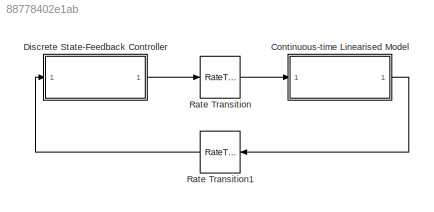
MODEL slx_88778402e1ab
KIND model
CONFIG AbsTol = auto
CONFIG EnableMultiTasking = off
CONFIG FixedStep = auto
CONFIG MaxStep = auto
CONFIG MinStep = auto
CONFIG RelTol = 1e-3
CONFIG SampleTimeConstraint = Unconstrained
CONFIG SolverName = VariableStepAuto
CONFIG StartTime = 0.0
CONFIG StopTime = 10.0
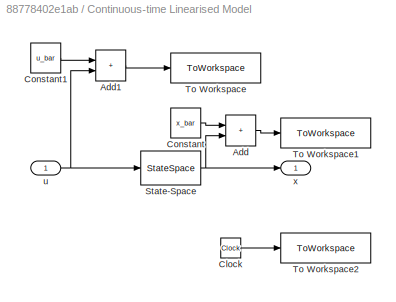
BLOCK [SubSystem] Continuous-time Linearised Model
  Ports = [1, 1]
  RequestExecContextInheritance = off
BLOCK [Sum] Continuous-time Linearised Model/Add
  IconShape = rectangular
  Ports = [2, 1]
BLOCK [Sum] Continuous-time Linearised Model/Add1
  IconShape = rectangular
  Ports = [2, 1]
BLOCK [Clock] Continuous-time Linearised Model/Clock
BLOCK [Constant] Continuous-time Linearised Model/Constant
  Value = x_bar
BLOCK [Constant] Continuous-time Linearised Model/Constant1
  Value = u_bar
BLOCK [StateSpace] Continuous-time Linearised Model/State-Space
  A = A
  B = B
  C = C
  D = D
  InitialCondition = x0_tilde
  Ports = [1, 1]
BLOCK [ToWorkspace] Continuous-time Linearised Model/To Workspace
  FixptAsFi = on
  MaxDataPoints = inf
  Ports = [1]
  SampleTime = -1
  VariableName = u
BLOCK [ToWorkspace] Continuous-time Linearised Model/To Workspace1
  FixptAsFi = on
  MaxDataPoints = inf
  Ports = [1]
  SampleTime = -1
  VariableName = x
BLOCK [ToWorkspace] Continuous-time Linearised Model/To Workspace2
  FixptAsFi = on
  MaxDataPoints = inf
  Ports = [1]
  SampleTime = -1
  VariableName = t
BLOCK [Inport] Continuous-time Linearised Model/u
BLOCK [Outport] Continuous-time Linearised Model/x
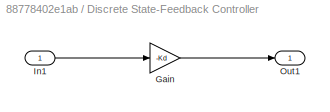
BLOCK [SubSystem] Discrete State-Feedback Controller
  Ports = [1, 1]
  RequestExecContextInheritance = off
BLOCK [Gain] Discrete State-Feedback Controller/Gain
  Gain = -Kd
  Multiplication = Matrix(K*u)
BLOCK [Inport] Discrete State-Feedback Controller/In1
BLOCK [Outport] Discrete State-Feedback Controller/Out1
BLOCK [RateTransition] Rate Transition
  InitialCondition = -Kd*x0_tilde
BLOCK [RateTransition] Rate Transition1
  InitialCondition = x0_tilde
  NameLocation = top
  OutPortSampleTime = Ts
LINE Continuous-time Linearised Model/Add1:1 -> Continuous-time Linearised Model/To Workspace:1
LINE Continuous-time Linearised Model/Add:1 -> Continuous-time Linearised Model/To Workspace1:1
LINE Continuous-time Linearised Model/Clock:1 -> Continuous-time Linearised Model/To Workspace2:1
LINE Continuous-time Linearised Model/Constant1:1 -> Continuous-time Linearised Model/Add1:1
LINE Continuous-time Linearised Model/Constant:1 -> Continuous-time Linearised Model/Add:1
NET Continuous-time Linearised Model/State-Space:1 -> Continuous-time Linearised Model/Add:2, Continuous-time Linearised Model/x:1
NET Continuous-time Linearised Model/u:1 -> Continuous-time Linearised Model/Add1:2, Continuous-time Linearised Model/State-Space:1
LINE Continuous-time Linearised Model:1 -> Rate Transition1:1
LINE Discrete State-Feedback Controller/Gain:1 -> Discrete State-Feedback Controller/Out1:1
LINE Discrete State-Feedback Controller/In1:1 -> Discrete State-Feedback Controller/Gain:1
LINE Discrete State-Feedback Controller:1 -> Rate Transition:1
LINE Rate Transition1:1 -> Discrete State-Feedback Controller:1
LINE Rate Transition:1 -> Continuous-time Linearised Model:1
note: NET lines group one-source signal fan-out (src -> all destinations, sorted); 1:1 wires keep LINE
